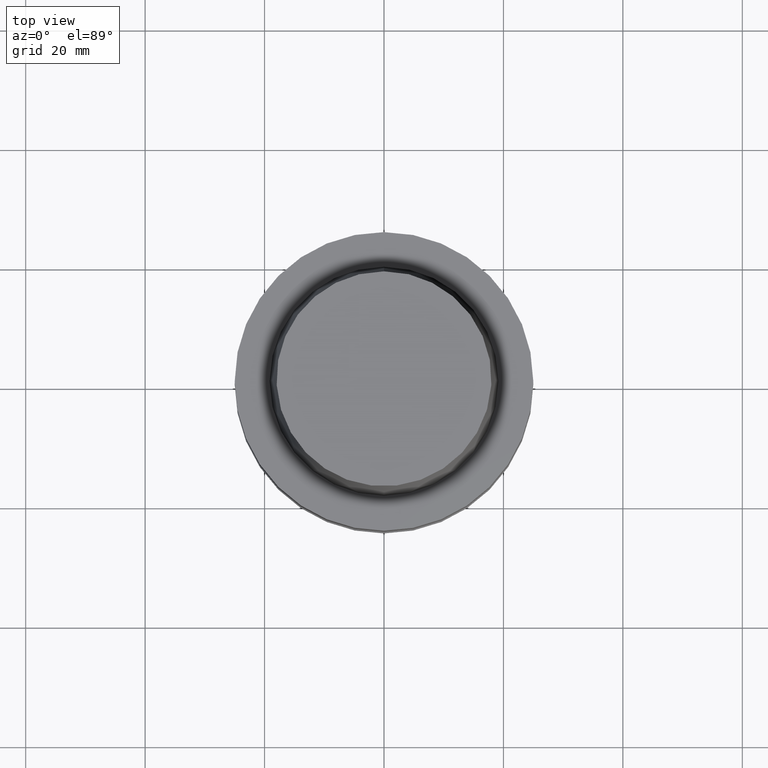
[diagram: clean part render]
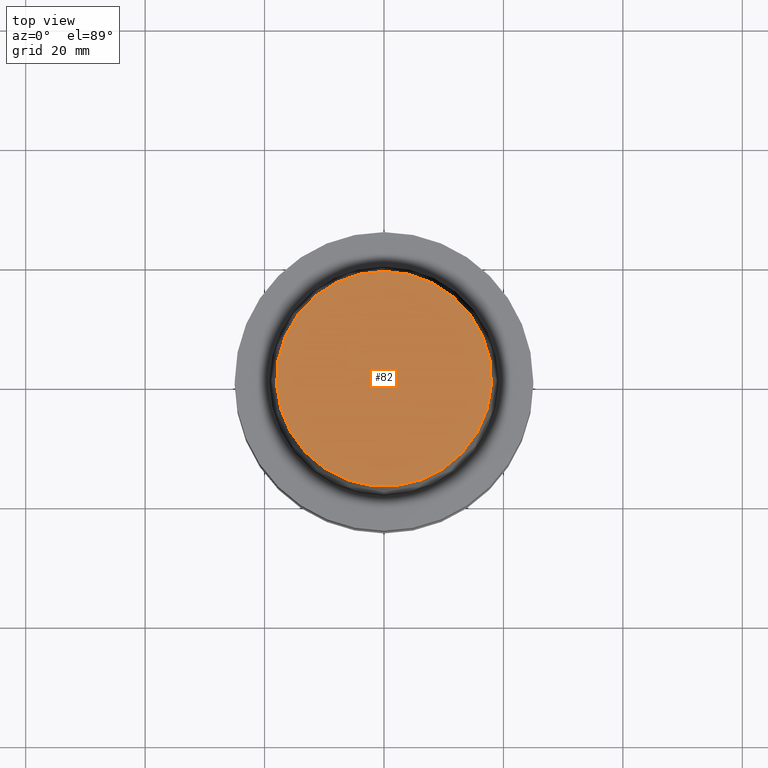
[diagram: same view with one face highlighted and labeled with its STEP entity id]
A machine part, top view. The second image highlights one B-rep face of the part: STEP entity #82.
In plain terms, the highlighted planar face has unit normal (-0, -0, 1).
Its self-contained STEP definition (entity closure, byte-faithful):
#82=ADVANCED_FACE('',(#116),#117,.T.);
#116=FACE_OUTER_BOUND('',#174,.T.);
#117=PLANE('',#175);
#174=EDGE_LOOP('',(#246));
#175=AXIS2_PLACEMENT_3D('',#247,#248,#249);
#246=ORIENTED_EDGE('',*,*,#317,.F.);
#247=CARTESIAN_POINT('',(-1.53080849893419E-015,9.00000000052154,25.0));
#248=DIRECTION('',(-6.12323399573677E-017,-1.22464679914735E-016,1.0));
#249=DIRECTION('',(1.23259516440783E-032,-1.0,-1.22464679914735E-016));
#317=EDGE_CURVE('',#343,#343,#344,.T.);
#343=VERTEX_POINT('',#381);
#344=CIRCLE('',#382,18.0000000010431);
#381=CARTESIAN_POINT('',(-1.53080849893419E-015,18.0000000010431,25.0));
#382=AXIS2_PLACEMENT_3D('',#426,#427,#428);
#426=CARTESIAN_POINT('',(-1.53080849893419E-015,-3.06161699786838E-015,25.0));
#427=DIRECTION('',(6.12323399573677E-017,1.22464679914735E-016,-1.0));
#428=DIRECTION('',(-1.23259516440783E-032,1.0,1.22464679914735E-016));